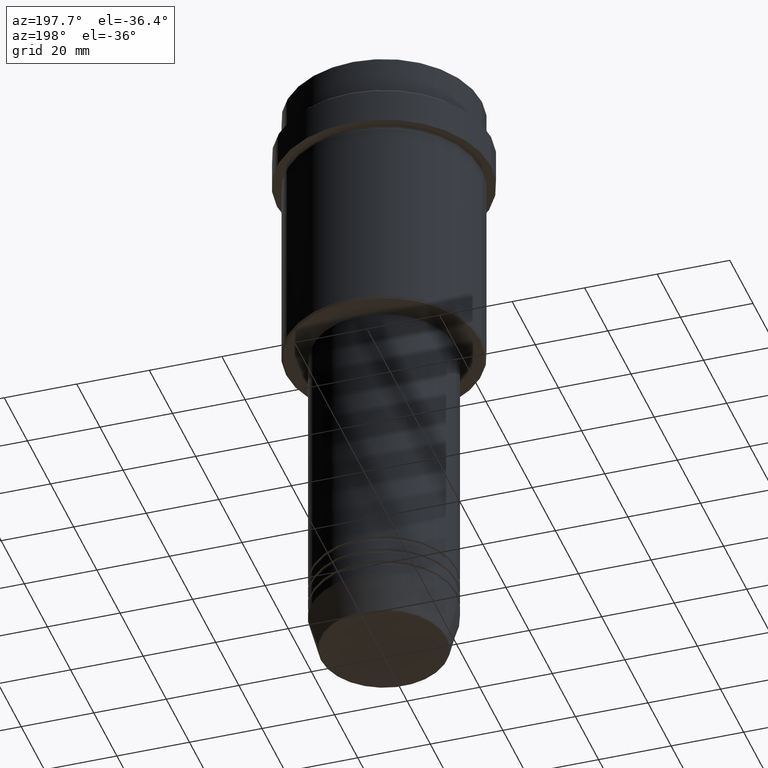
[diagram: clean part render]
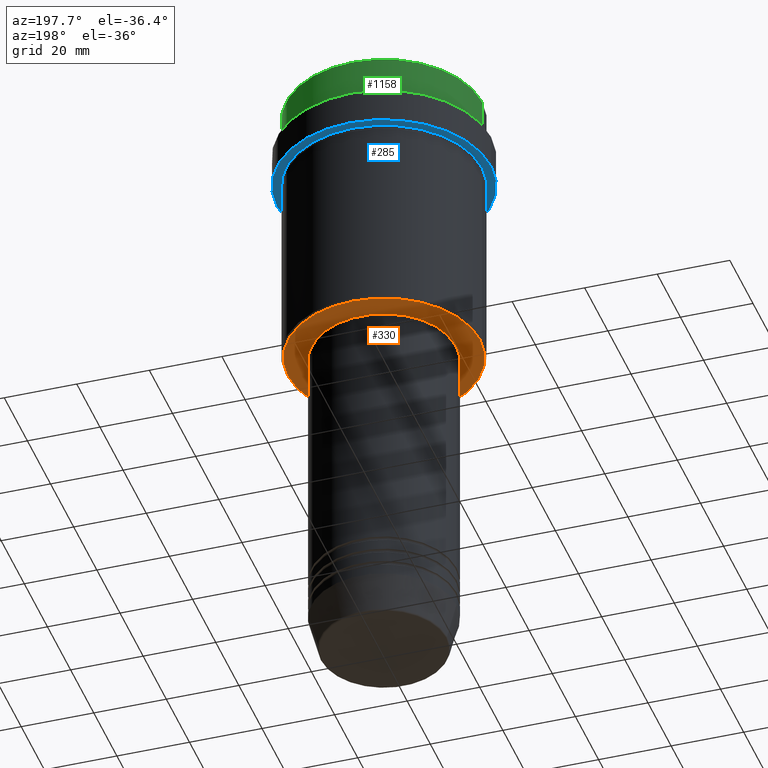
[diagram: same view with three faces highlighted in distinct colors, each labeled with its STEP entity id]
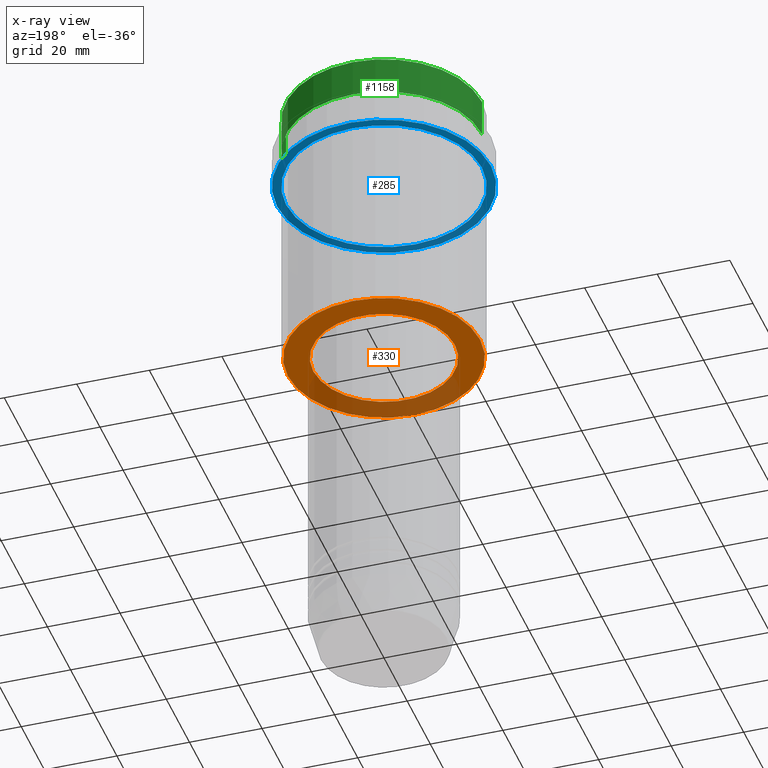
[diagram: x-ray of the same camera — body ghosted, the three highlighted faces saturated]
A machine part, auxiliary view with three faces highlighted in distinct colors.
The next image is the same camera in x-ray (body ghosted, the three faces saturated) — at least one of them is partly hidden behind the body in this view.
Their STEP definitions:

[orange] entity #330 — the highlighted planar face has unit normal (0, 0, -1).
#70 = EDGE_LOOP ( 'NONE', ( #394, #353 ) ) ;
#91 = CARTESIAN_POINT ( 'NONE',  ( 19.49999999999999289, 0.000000000000000000, -77.99999999999998579 ) ) ;
#126 = CARTESIAN_POINT ( 'NONE',  ( 0.000000000000000000, 0.000000000000000000, -77.99999999999998579 ) ) ;
#174 = DIRECTION ( 'NONE',  ( -0.000000000000000000, -0.000000000000000000, 1.000000000000000000 ) ) ;
#265 = CARTESIAN_POINT ( 'NONE',  ( 0.000000000000000000, 0.000000000000000000, -77.99999999999998579 ) ) ;
#271 = CARTESIAN_POINT ( 'NONE',  ( 26.50000000000001066, 0.000000000000000000, -77.99999999999998579 ) ) ;
#298 = ORIENTED_EDGE ( 'NONE', *, *, #761, .T. ) ;
#330 = ADVANCED_FACE ( 'NONE', ( #617, #1379 ), #1036, .T. ) ;
#353 = ORIENTED_EDGE ( 'NONE', *, *, #702, .T. ) ;
#384 = DIRECTION ( 'NONE',  ( 0.000000000000000000, 0.000000000000000000, -1.000000000000000000 ) ) ;
#385 = CIRCLE ( 'NONE', #1304, 19.49999999999999289 ) ;
#394 = ORIENTED_EDGE ( 'NONE', *, *, #546, .T. ) ;
#445 = EDGE_CURVE ( 'NONE', #504, #861, #385, .T. ) ;
#475 = ORIENTED_EDGE ( 'NONE', *, *, #445, .T. ) ;
#504 = VERTEX_POINT ( 'NONE', #91 ) ;
#506 = CARTESIAN_POINT ( 'NONE',  ( -26.50000000000001066, 3.275930187719170735E-15, -77.99999999999998579 ) ) ;
#546 = EDGE_CURVE ( 'NONE', #1119, #1315, #848, .T. ) ;
#573 = DIRECTION ( 'NONE',  ( -1.000000000000000000, 0.000000000000000000, 0.000000000000000000 ) ) ;
#577 = AXIS2_PLACEMENT_3D ( 'NONE', #880, #1079, #869 ) ;
#617 = FACE_OUTER_BOUND ( 'NONE', #70, .T. ) ;
#618 = AXIS2_PLACEMENT_3D ( 'NONE', #126, #1096, #573 ) ;
#626 = DIRECTION ( 'NONE',  ( 1.000000000000000000, 0.000000000000000000, 0.000000000000000000 ) ) ;
#639 = DIRECTION ( 'NONE',  ( 1.000000000000000000, 0.000000000000000000, 0.000000000000000000 ) ) ;
#702 = EDGE_CURVE ( 'NONE', #1315, #1119, #1236, .T. ) ;
#709 = EDGE_LOOP ( 'NONE', ( #475, #298 ) ) ;
#761 = EDGE_CURVE ( 'NONE', #861, #504, #1356, .T. ) ;
#826 = DIRECTION ( 'NONE',  ( -1.000000000000000000, 0.000000000000000000, -0.000000000000000000 ) ) ;
#848 = CIRCLE ( 'NONE', #577, 26.50000000000001066 ) ;
#861 = VERTEX_POINT ( 'NONE', #1072 ) ;
#869 = DIRECTION ( 'NONE',  ( -1.000000000000000000, 0.000000000000000000, 0.000000000000000000 ) ) ;
#880 = CARTESIAN_POINT ( 'NONE',  ( 0.000000000000000000, 0.000000000000000000, -77.99999999999998579 ) ) ;
#942 = AXIS2_PLACEMENT_3D ( 'NONE', #265, #174, #626 ) ;
#1036 = PLANE ( 'NONE',  #1154 ) ;
#1072 = CARTESIAN_POINT ( 'NONE',  ( -19.49999999999999289, 2.388061258337338150E-15, -77.99999999999998579 ) ) ;
#1079 = DIRECTION ( 'NONE',  ( 0.000000000000000000, 0.000000000000000000, -1.000000000000000000 ) ) ;
#1096 = DIRECTION ( 'NONE',  ( 0.000000000000000000, 0.000000000000000000, -1.000000000000000000 ) ) ;
#1119 = VERTEX_POINT ( 'NONE', #271 ) ;
#1154 = AXIS2_PLACEMENT_3D ( 'NONE', #1364, #384, #826 ) ;
#1204 = DIRECTION ( 'NONE',  ( -0.000000000000000000, -0.000000000000000000, 1.000000000000000000 ) ) ;
#1236 = CIRCLE ( 'NONE', #618, 26.50000000000001066 ) ;
#1299 = CARTESIAN_POINT ( 'NONE',  ( 0.000000000000000000, 0.000000000000000000, -77.99999999999998579 ) ) ;
#1304 = AXIS2_PLACEMENT_3D ( 'NONE', #1299, #1204, #639 ) ;
#1315 = VERTEX_POINT ( 'NONE', #506 ) ;
#1356 = CIRCLE ( 'NONE', #942, 19.49999999999999289 ) ;
#1364 = CARTESIAN_POINT ( 'NONE',  ( 0.000000000000000000, 27.00000000000000355, -77.99999999999998579 ) ) ;
#1379 = FACE_BOUND ( 'NONE', #709, .T. ) ;

[blue] entity #285 — the highlighted planar face has unit normal (0, 0, -1).
#75 = CARTESIAN_POINT ( 'NONE',  ( 0.000000000000000000, 29.49999999999999645, -21.99999999999999289 ) ) ;
#84 = VERTEX_POINT ( 'NONE', #1300 ) ;
#171 = VERTEX_POINT ( 'NONE', #996 ) ;
#285 = ADVANCED_FACE ( 'NONE', ( #899, #791 ), #1043, .T. ) ;
#311 = CARTESIAN_POINT ( 'NONE',  ( 0.000000000000000000, 0.000000000000000000, -21.99999999999999289 ) ) ;
#339 = CARTESIAN_POINT ( 'NONE',  ( 0.000000000000000000, 0.000000000000000000, -21.99999999999999289 ) ) ;
#373 = VERTEX_POINT ( 'NONE', #1258 ) ;
#376 = VERTEX_POINT ( 'NONE', #1268 ) ;
#381 = EDGE_LOOP ( 'NONE', ( #1257, #1045 ) ) ;
#451 = DIRECTION ( 'NONE',  ( -1.000000000000000000, 0.000000000000000000, 0.000000000000000000 ) ) ;
#453 = DIRECTION ( 'NONE',  ( -0.000000000000000000, -0.000000000000000000, 1.000000000000000000 ) ) ;
#500 = DIRECTION ( 'NONE',  ( 1.000000000000000000, 0.000000000000000000, 0.000000000000000000 ) ) ;
#512 = DIRECTION ( 'NONE',  ( -0.000000000000000000, -0.000000000000000000, 1.000000000000000000 ) ) ;
#517 = DIRECTION ( 'NONE',  ( -0.000000000000000000, -0.000000000000000000, 1.000000000000000000 ) ) ;
#571 = AXIS2_PLACEMENT_3D ( 'NONE', #1321, #453, #888 ) ;
#609 = CARTESIAN_POINT ( 'NONE',  ( 0.000000000000000000, 0.000000000000000000, -21.99999999999999289 ) ) ;
#615 = ORIENTED_EDGE ( 'NONE', *, *, #846, .F. ) ;
#621 = AXIS2_PLACEMENT_3D ( 'NONE', #339, #1319, #451 ) ;
#744 = EDGE_CURVE ( 'NONE', #376, #84, #920, .T. ) ;
#791 = FACE_OUTER_BOUND ( 'NONE', #829, .T. ) ;
#808 = CIRCLE ( 'NONE', #1173, 29.49999999999999645 ) ;
#809 = AXIS2_PLACEMENT_3D ( 'NONE', #75, #930, #934 ) ;
#829 = EDGE_LOOP ( 'NONE', ( #615, #1354 ) ) ;
#846 = EDGE_CURVE ( 'NONE', #171, #373, #1056, .T. ) ;
#888 = DIRECTION ( 'NONE',  ( -1.000000000000000000, 0.000000000000000000, 0.000000000000000000 ) ) ;
#899 = FACE_BOUND ( 'NONE', #381, .T. ) ;
#920 = CIRCLE ( 'NONE', #571, 26.99999999999999645 ) ;
#930 = DIRECTION ( 'NONE',  ( 0.000000000000000000, 0.000000000000000000, -1.000000000000000000 ) ) ;
#934 = DIRECTION ( 'NONE',  ( -1.000000000000000000, 0.000000000000000000, -0.000000000000000000 ) ) ;
#935 = EDGE_CURVE ( 'NONE', #84, #376, #1239, .T. ) ;
#996 = CARTESIAN_POINT ( 'NONE',  ( 29.49999999999999645, 0.000000000000000000, -21.99999999999999289 ) ) ;
#1032 = AXIS2_PLACEMENT_3D ( 'NONE', #609, #512, #500 ) ;
#1043 = PLANE ( 'NONE',  #809 ) ;
#1045 = ORIENTED_EDGE ( 'NONE', *, *, #744, .T. ) ;
#1056 = CIRCLE ( 'NONE', #1032, 29.49999999999999645 ) ;
#1070 = DIRECTION ( 'NONE',  ( 1.000000000000000000, 0.000000000000000000, 0.000000000000000000 ) ) ;
#1173 = AXIS2_PLACEMENT_3D ( 'NONE', #311, #517, #1070 ) ;
#1239 = CIRCLE ( 'NONE', #621, 26.99999999999999645 ) ;
#1248 = EDGE_CURVE ( 'NONE', #373, #171, #808, .T. ) ;
#1257 = ORIENTED_EDGE ( 'NONE', *, *, #935, .T. ) ;
#1258 = CARTESIAN_POINT ( 'NONE',  ( -29.49999999999999645, 3.612708057484690815E-15, -21.99999999999999289 ) ) ;
#1268 = CARTESIAN_POINT ( 'NONE',  ( 26.99999999999999645, 3.306546357697853339E-15, -21.99999999999999289 ) ) ;
#1300 = CARTESIAN_POINT ( 'NONE',  ( -26.99999999999999645, 0.000000000000000000, -21.99999999999999289 ) ) ;
#1319 = DIRECTION ( 'NONE',  ( -0.000000000000000000, -0.000000000000000000, 1.000000000000000000 ) ) ;
#1321 = CARTESIAN_POINT ( 'NONE',  ( 0.000000000000000000, 0.000000000000000000, -21.99999999999999289 ) ) ;
#1354 = ORIENTED_EDGE ( 'NONE', *, *, #1248, .F. ) ;

[green] entity #1158 — the highlighted cylindrical surface (partial cylindrical patch) has radius 27 mm, axis along (-0, -0, 1).
#27 = CIRCLE ( 'NONE', #852, 27.00000000000000355 ) ;
#68 = AXIS2_PLACEMENT_3D ( 'NONE', #89, #1271, #290 ) ;
#82 = VERTEX_POINT ( 'NONE', #1403 ) ;
#89 = CARTESIAN_POINT ( 'NONE',  ( 0.000000000000000000, 0.000000000000000000, -10.99999999999998757 ) ) ;
#137 = DIRECTION ( 'NONE',  ( 1.000000000000000000, 0.000000000000000000, 0.000000000000000000 ) ) ;
#165 = ORIENTED_EDGE ( 'NONE', *, *, #557, .T. ) ;
#234 = CARTESIAN_POINT ( 'NONE',  ( 27.00000000000000355, 0.000000000000000000, -0.4999999999999796274 ) ) ;
#248 = VERTEX_POINT ( 'NONE', #234 ) ;
#262 = EDGE_LOOP ( 'NONE', ( #1367, #165, #712, #1069 ) ) ;
#290 = DIRECTION ( 'NONE',  ( 1.000000000000000000, 0.000000000000000000, 0.000000000000000000 ) ) ;
#312 = CARTESIAN_POINT ( 'NONE',  ( -27.00000000000000355, 3.306546357697854128E-15, -0.4999999999999796274 ) ) ;
#372 = FACE_OUTER_BOUND ( 'NONE', #262, .T. ) ;
#416 = DIRECTION ( 'NONE',  ( -0.000000000000000000, -0.000000000000000000, 1.000000000000000000 ) ) ;
#430 = CARTESIAN_POINT ( 'NONE',  ( -27.00000000000000355, 3.306546357697854128E-15, -10.99999999999998757 ) ) ;
#464 = CARTESIAN_POINT ( 'NONE',  ( 0.000000000000000000, 0.000000000000000000, 0.000000000000000000 ) ) ;
#481 = VECTOR ( 'NONE', #807, 1000.000000000000000 ) ;
#523 = CARTESIAN_POINT ( 'NONE',  ( 27.00000000000000355, 0.000000000000000000, 0.000000000000000000 ) ) ;
#529 = AXIS2_PLACEMENT_3D ( 'NONE', #464, #789, #137 ) ;
#543 = CARTESIAN_POINT ( 'NONE',  ( -27.00000000000000355, 3.306546357697854128E-15, 0.000000000000000000 ) ) ;
#557 = EDGE_CURVE ( 'NONE', #1390, #841, #1305, .T. ) ;
#597 = CIRCLE ( 'NONE', #68, 27.00000000000000355 ) ;
#712 = ORIENTED_EDGE ( 'NONE', *, *, #1320, .T. ) ;
#730 = DIRECTION ( 'NONE',  ( 0.000000000000000000, 0.000000000000000000, -1.000000000000000000 ) ) ;
#746 = LINE ( 'NONE', #523, #481 ) ;
#789 = DIRECTION ( 'NONE',  ( -0.000000000000000000, -0.000000000000000000, 1.000000000000000000 ) ) ;
#807 = DIRECTION ( 'NONE',  ( -0.000000000000000000, -0.000000000000000000, 1.000000000000000000 ) ) ;
#831 = EDGE_CURVE ( 'NONE', #82, #248, #746, .T. ) ;
#841 = VERTEX_POINT ( 'NONE', #312 ) ;
#852 = AXIS2_PLACEMENT_3D ( 'NONE', #1276, #730, #1167 ) ;
#889 = EDGE_CURVE ( 'NONE', #82, #1390, #597, .T. ) ;
#946 = VECTOR ( 'NONE', #416, 1000.000000000000000 ) ;
#1069 = ORIENTED_EDGE ( 'NONE', *, *, #831, .F. ) ;
#1158 = ADVANCED_FACE ( 'NONE', ( #372 ), #1362, .T. ) ;
#1167 = DIRECTION ( 'NONE',  ( 1.000000000000000000, 0.000000000000000000, 0.000000000000000000 ) ) ;
#1271 = DIRECTION ( 'NONE',  ( -0.000000000000000000, -0.000000000000000000, 1.000000000000000000 ) ) ;
#1276 = CARTESIAN_POINT ( 'NONE',  ( 0.000000000000000000, 0.000000000000000000, -0.4999999999999796274 ) ) ;
#1305 = LINE ( 'NONE', #543, #946 ) ;
#1320 = EDGE_CURVE ( 'NONE', #841, #248, #27, .T. ) ;
#1362 = CYLINDRICAL_SURFACE ( 'NONE', #529, 27.00000000000000355 ) ;
#1367 = ORIENTED_EDGE ( 'NONE', *, *, #889, .T. ) ;
#1390 = VERTEX_POINT ( 'NONE', #430 ) ;
#1403 = CARTESIAN_POINT ( 'NONE',  ( 27.00000000000000355, 0.000000000000000000, -10.99999999999998757 ) ) ;